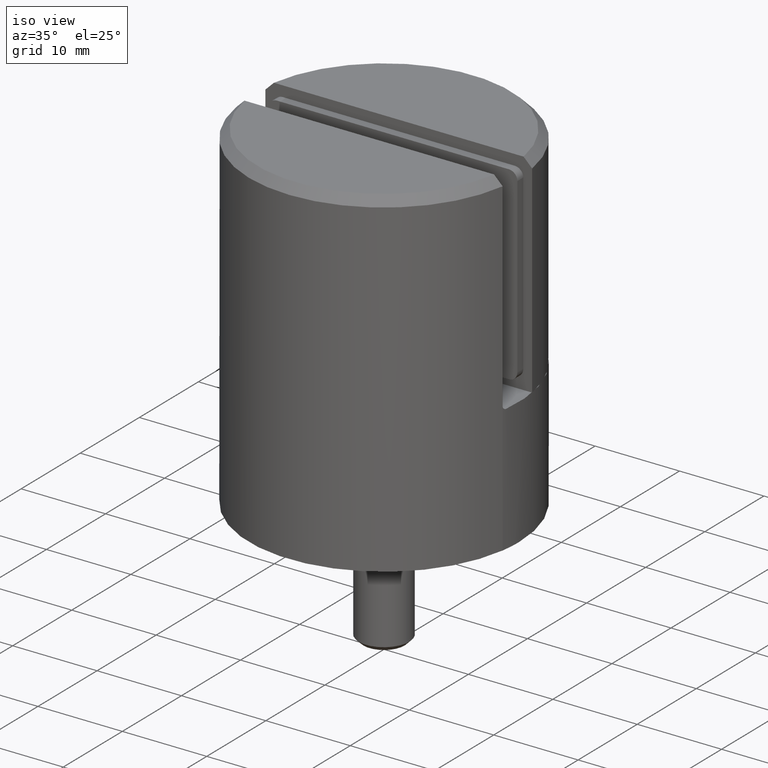
[diagram: clean part render]
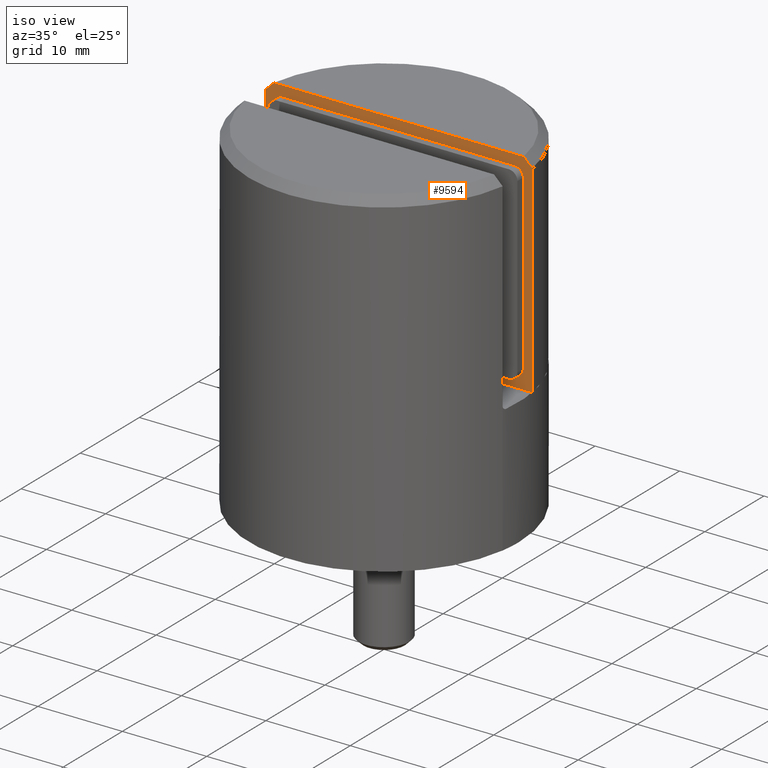
[diagram: same view with one face highlighted and labeled with its STEP entity id]
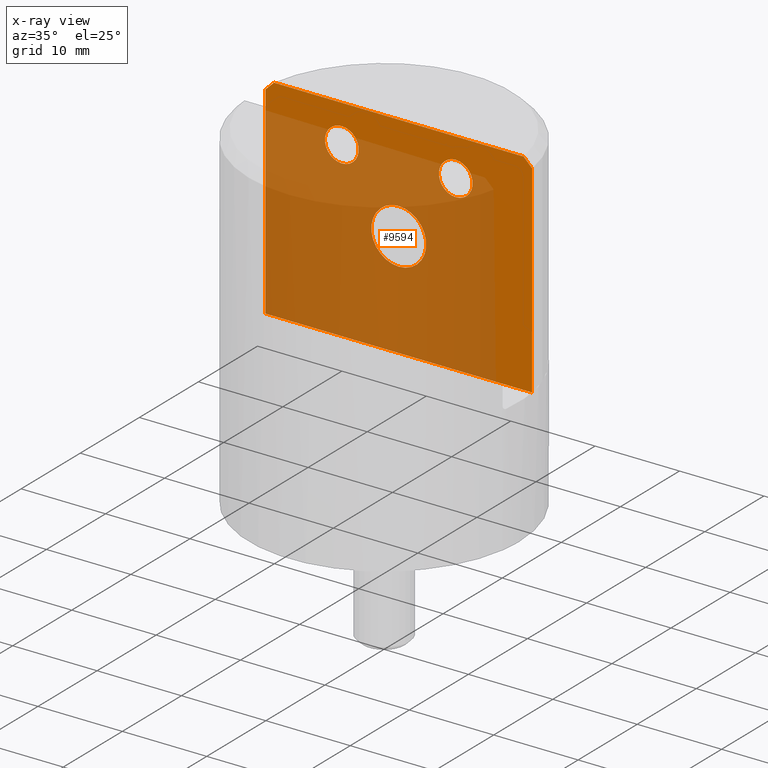
[diagram: x-ray of the same camera — body ghosted, the highlighted face saturated]
A machine part, iso view. The second image highlights one B-rep face of the part: STEP entity #9594.
The next image is the same camera in x-ray: the body ghosted, the highlighted face saturated — about 73% of this face is hidden behind the body in this view.
In plain terms, the highlighted planar face has unit normal (0, 1, 0).
Its self-contained STEP definition (entity closure, byte-faithful):
#4 = PLANE ( 'NONE',  #2023 ) ;
#377 = VERTEX_POINT ( 'NONE', #8227 ) ;
#804 = FACE_BOUND ( 'NONE', #1885, .T. ) ;
#1051 = VERTEX_POINT ( 'NONE', #16723 ) ;
#1335 = CARTESIAN_POINT ( 'NONE',  ( -6.750000000000002665, 2.500000000000000444, 18.49999999999999289 ) ) ;
#1472 = VERTEX_POINT ( 'NONE', #5150 ) ;
#1506 = VERTEX_POINT ( 'NONE', #10030 ) ;
#1647 = CARTESIAN_POINT ( 'NONE',  ( -14.79019945774903455, 2.500000000000000444, 25.00000000000000000 ) ) ;
#1864 = DIRECTION ( 'NONE',  ( -0.000000000000000000, -0.000000000000000000, -1.000000000000000000 ) ) ;
#1885 = EDGE_LOOP ( 'NONE', ( #10752 ) ) ;
#2010 = CARTESIAN_POINT ( 'NONE',  ( 6.749999999999997335, 2.500000000000000444, 20.49999999999999289 ) ) ;
#2023 = AXIS2_PLACEMENT_3D ( 'NONE', #9336, #4549, #10858 ) ;
#2522 = EDGE_CURVE ( 'NONE', #14130, #17082, #2991, .T. ) ;
#2672 = AXIS2_PLACEMENT_3D ( 'NONE', #19581, #4258, #10381 ) ;
#2725 = FACE_BOUND ( 'NONE', #18064, .T. ) ;
#2909 = EDGE_LOOP ( 'NONE', ( #4117, #5187, #10409, #13110, #17378, #6981 ) ) ;
#2991 = LINE ( 'NONE', #19610, #15827 ) ;
#3684 = FACE_BOUND ( 'NONE', #18048, .T. ) ;
#4117 = ORIENTED_EDGE ( 'NONE', *, *, #2522, .F. ) ;
#4258 = DIRECTION ( 'NONE',  ( 0.000000000000000000, -1.000000000000000000, 0.000000000000000000 ) ) ;
#4395 = DIRECTION ( 'NONE',  ( 0.000000000000000000, 1.000000000000000000, 0.000000000000000000 ) ) ;
#4549 = DIRECTION ( 'NONE',  ( 0.000000000000000000, 1.000000000000000000, 0.000000000000000000 ) ) ;
#4817 = DIRECTION ( 'NONE',  ( 1.000000000000000000, 0.000000000000000000, 0.000000000000000000 ) ) ;
#4946 = VECTOR ( 'NONE', #17753, 1000.000000000000000 ) ;
#5150 = CARTESIAN_POINT ( 'NONE',  ( 15.80348062927910924, 2.500000000000000444, 23.99999999999998934 ) ) ;
#5187 = ORIENTED_EDGE ( 'NONE', *, *, #16053, .T. ) ;
#5472 = AXIS2_PLACEMENT_3D ( 'NONE', #10438, #4395, #15039 ) ;
#5906 = CARTESIAN_POINT ( 'NONE',  ( -15.80348062927910924, 2.500000000000000444, 25.00000000000000000 ) ) ;
#6340 = EDGE_CURVE ( 'NONE', #13969, #1506, #6812, .T. ) ;
#6425 = EDGE_CURVE ( 'NONE', #11760, #11760, #16106, .T. ) ;
#6635 = VECTOR ( 'NONE', #1864, 1000.000000000000000 ) ;
#6812 = LINE ( 'NONE', #5906, #14432 ) ;
#6981 = ORIENTED_EDGE ( 'NONE', *, *, #12219, .T. ) ;
#7851 = CARTESIAN_POINT ( 'NONE',  ( -15.12810841561664610, 2.500000000000000444, 24.66681727430519544 ) ) ;
#7920 = CARTESIAN_POINT ( 'NONE',  ( -15.80348062927910924, 2.500000000000000444, 23.99999999999998934 ) ) ;
#8008 = ORIENTED_EDGE ( 'NONE', *, *, #8887, .F. ) ;
#8227 = CARTESIAN_POINT ( 'NONE',  ( 15.80348062927910924, 2.500000000000000444, 0.000000000000000000 ) ) ;
#8887 = EDGE_CURVE ( 'NONE', #9159, #9159, #14141, .T. ) ;
#8956 = ORIENTED_EDGE ( 'NONE', *, *, #13071, .F. ) ;
#9159 = VERTEX_POINT ( 'NONE', #1335 ) ;
#9336 = CARTESIAN_POINT ( 'NONE',  ( -15.80348062927910924, 2.500000000000000444, 25.00000000000000000 ) ) ;
#9570 = B_SPLINE_CURVE_WITH_KNOTS ( 'NONE', 3,
 ( #13164, #11358, #16101, #14686 ),
 .UNSPECIFIED., .F., .F.,
 ( 4, 4 ),
 ( 0.000000000000000000, 0.001423635744345223830 ),
 .UNSPECIFIED. ) ;
#9594 = ADVANCED_FACE ( 'NONE', ( #804, #3684, #2725, #18434 ), #4, .F. ) ;
#10030 = CARTESIAN_POINT ( 'NONE',  ( -15.80348062927910924, 2.500000000000000444, 0.000000000000000000 ) ) ;
#10326 = AXIS2_PLACEMENT_3D ( 'NONE', #2010, #12657, #15719 ) ;
#10381 = DIRECTION ( 'NONE',  ( 0.000000000000000000, 0.000000000000000000, -1.000000000000000000 ) ) ;
#10409 = ORIENTED_EDGE ( 'NONE', *, *, #6340, .T. ) ;
#10438 = CARTESIAN_POINT ( 'NONE',  ( 1.530808498934191521E-15, 2.500000000000000444, 12.50000000000000000 ) ) ;
#10752 = ORIENTED_EDGE ( 'NONE', *, *, #6425, .T. ) ;
#10858 = DIRECTION ( 'NONE',  ( 0.000000000000000000, -0.000000000000000000, 1.000000000000000000 ) ) ;
#10975 = CARTESIAN_POINT ( 'NONE',  ( 15.80348062927910924, 2.500000000000000444, 25.00000000000000000 ) ) ;
#11358 = CARTESIAN_POINT ( 'NONE',  ( 15.46585946293022218, 2.500000000000000444, 24.33347434765182271 ) ) ;
#11760 = VERTEX_POINT ( 'NONE', #13453 ) ;
#11967 = DIRECTION ( 'NONE',  ( -0.000000000000000000, -0.000000000000000000, -1.000000000000000000 ) ) ;
#12219 = EDGE_CURVE ( 'NONE', #1472, #17082, #9570, .T. ) ;
#12657 = DIRECTION ( 'NONE',  ( 0.000000000000000000, -1.000000000000000000, 0.000000000000000000 ) ) ;
#13071 = EDGE_CURVE ( 'NONE', #1051, #1051, #15501, .T. ) ;
#13110 = ORIENTED_EDGE ( 'NONE', *, *, #19081, .T. ) ;
#13164 = CARTESIAN_POINT ( 'NONE',  ( 15.80348062927910924, 2.500000000000000444, 23.99999999999998934 ) ) ;
#13453 = CARTESIAN_POINT ( 'NONE',  ( 1.530808498934191521E-15, 2.500000000000000444, 15.75000000000000000 ) ) ;
#13894 = CARTESIAN_POINT ( 'NONE',  ( -15.46585946293021863, 2.500000000000000444, 24.33347434765182271 ) ) ;
#13969 = VERTEX_POINT ( 'NONE', #15206 ) ;
#13973 = CARTESIAN_POINT ( 'NONE',  ( 14.79019945774903633, 2.500000000000000444, 25.00000000000000000 ) ) ;
#14130 = VERTEX_POINT ( 'NONE', #14458 ) ;
#14141 = CIRCLE ( 'NONE', #2672, 2.000000000000001776 ) ;
#14432 = VECTOR ( 'NONE', #11967, 1000.000000000000000 ) ;
#14458 = CARTESIAN_POINT ( 'NONE',  ( -14.79019945774903455, 2.500000000000000444, 25.00000000000000000 ) ) ;
#14501 = LINE ( 'NONE', #14736, #4946 ) ;
#14686 = CARTESIAN_POINT ( 'NONE',  ( 14.79019945774903633, 2.500000000000000444, 25.00000000000000000 ) ) ;
#14736 = CARTESIAN_POINT ( 'NONE',  ( -15.80348062927910924, 2.500000000000000444, 0.000000000000000000 ) ) ;
#15039 = DIRECTION ( 'NONE',  ( 0.000000000000000000, 0.000000000000000000, 1.000000000000000000 ) ) ;
#15206 = CARTESIAN_POINT ( 'NONE',  ( -15.80348062927910924, 2.500000000000000444, 23.99999999999998934 ) ) ;
#15501 = CIRCLE ( 'NONE', #10326, 2.000000000000005329 ) ;
#15563 = B_SPLINE_CURVE_WITH_KNOTS ( 'NONE', 3,
 ( #1647, #7851, #13894, #7920 ),
 .UNSPECIFIED., .F., .F.,
 ( 4, 4 ),
 ( 0.000000000000000000, 0.001423635744345227083 ),
 .UNSPECIFIED. ) ;
#15719 = DIRECTION ( 'NONE',  ( 0.000000000000000000, 0.000000000000000000, -1.000000000000000000 ) ) ;
#15827 = VECTOR ( 'NONE', #4817, 1000.000000000000000 ) ;
#16053 = EDGE_CURVE ( 'NONE', #14130, #13969, #15563, .T. ) ;
#16101 = CARTESIAN_POINT ( 'NONE',  ( 15.12810841561664787, 2.500000000000000444, 24.66681727430519544 ) ) ;
#16106 = CIRCLE ( 'NONE', #5472, 3.249999999999999556 ) ;
#16723 = CARTESIAN_POINT ( 'NONE',  ( 6.749999999999997335, 2.500000000000000444, 18.49999999999998934 ) ) ;
#17082 = VERTEX_POINT ( 'NONE', #13973 ) ;
#17137 = EDGE_CURVE ( 'NONE', #1472, #377, #17844, .T. ) ;
#17378 = ORIENTED_EDGE ( 'NONE', *, *, #17137, .F. ) ;
#17753 = DIRECTION ( 'NONE',  ( 1.000000000000000000, 0.000000000000000000, 0.000000000000000000 ) ) ;
#17844 = LINE ( 'NONE', #10975, #6635 ) ;
#18048 = EDGE_LOOP ( 'NONE', ( #8956 ) ) ;
#18064 = EDGE_LOOP ( 'NONE', ( #8008 ) ) ;
#18434 = FACE_OUTER_BOUND ( 'NONE', #2909, .T. ) ;
#19081 = EDGE_CURVE ( 'NONE', #1506, #377, #14501, .T. ) ;
#19581 = CARTESIAN_POINT ( 'NONE',  ( -6.750000000000002665, 2.500000000000000444, 20.49999999999999289 ) ) ;
#19610 = CARTESIAN_POINT ( 'NONE',  ( -15.80348062927910924, 2.500000000000000444, 25.00000000000000000 ) ) ;